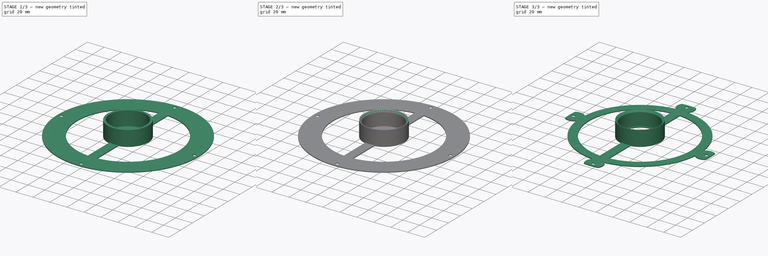
[diagram: build sequence overview — one tinted view per stage of 3, left to right]
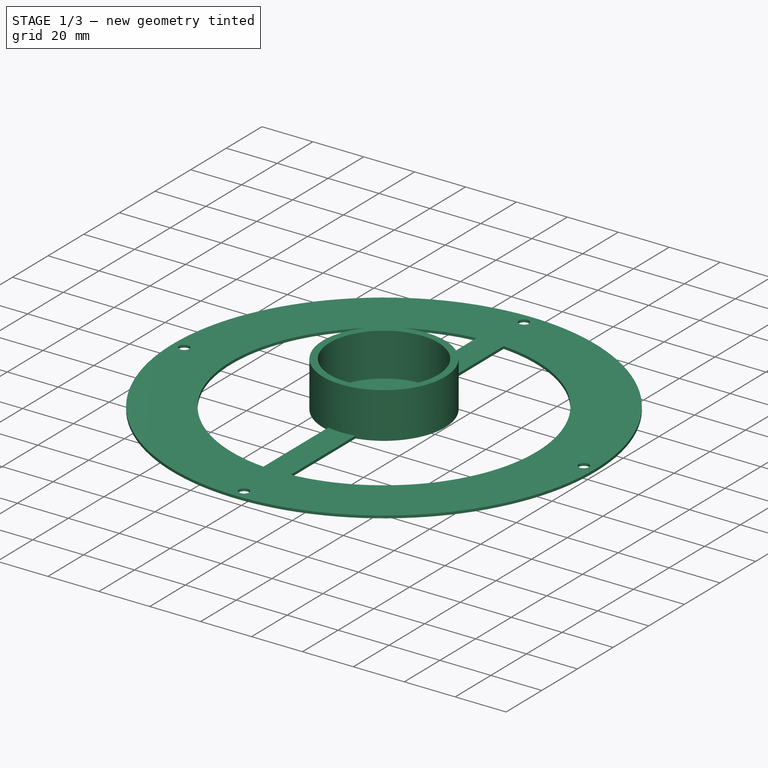
[diagram: stage 1 of 3 — iso view after this stage's code; geometry added in this stage tinted green]
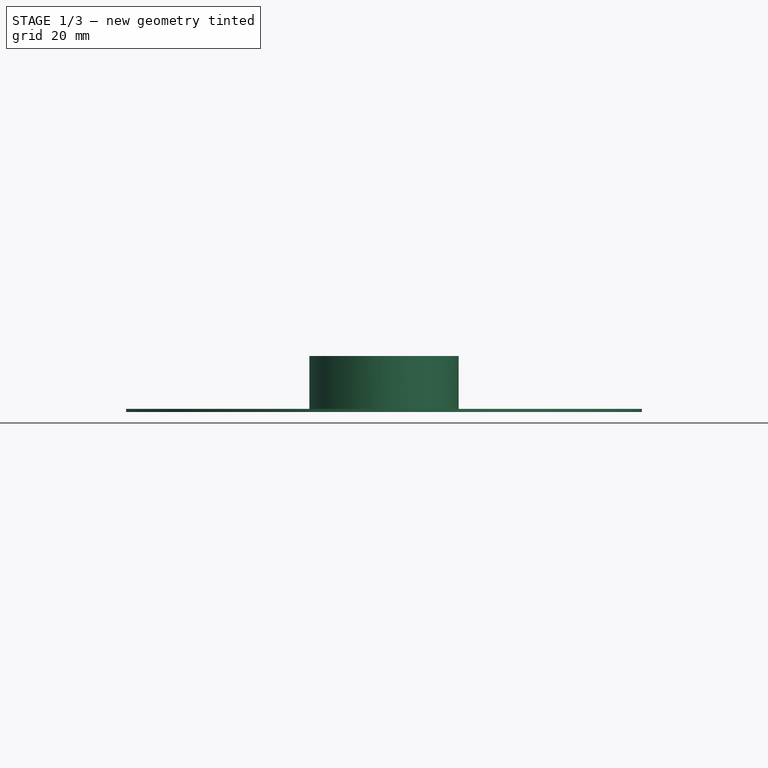
[diagram: stage 1 of 3 — front view after this stage's code; geometry added in this stage tinted green]
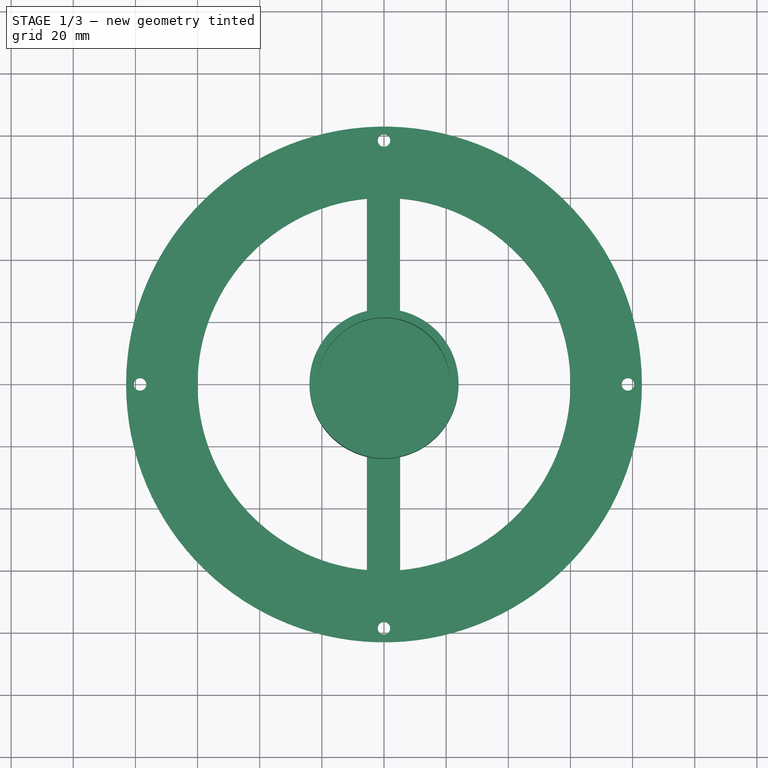
[diagram: stage 1 of 3 — top view after this stage's code; geometry added in this stage tinted green]
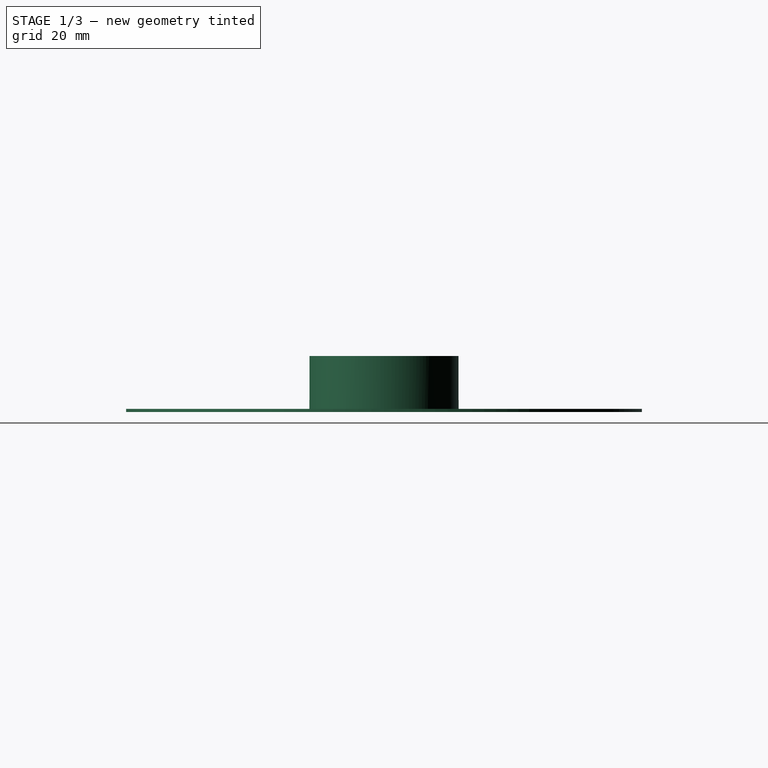
[diagram: stage 1 of 3 — right view after this stage's code; geometry added in this stage tinted green]
FCSTD DOCUMENT  (FreeCAD 0.19R24276 (Git))
Label: Support_for_glass_42_6_v4
License: All rights reserved
LicenseURL: http://en.wikipedia.org/wiki/All_rights_reserved
objects: Sketcher::SketchObject×4, PartDesign::Pad×2, PartDesign::Pocket×2, PartDesign::Chamfer×1, PartDesign::Body×1
note: 15 computed .brp shape members not serialized (recipe doc carries the construction recipe); baked Part::Feature solids carry a one-line shape summary decoded from their .brp

FEATURE [Sketcher::SketchObject] Sketch
  FullyConstrained = false
  MapMode = 5
  Support = -> [XY_Plane]
  sketch-geometry (21):
    g0: Circle CenterX=0 CenterY=0 CenterZ=0 NormalX=0 NormalY=0 NormalZ=1 AngleXU=0 Radius=83
    g1: Circle CenterX=0 CenterY=0 CenterZ=0 NormalX=0 NormalY=0 NormalZ=1 AngleXU=0 Radius=78.5
    g2: LineSegment StartX=0 StartY=0 StartZ=0 EndX=-0.00222336 EndY=78.5 EndZ=0
    g3: LineSegment StartX=0 StartY=0 StartZ=0 EndX=78.5 EndY=0 EndZ=0
    g4: LineSegment StartX=0 StartY=0 StartZ=0 EndX=-0.00912922 EndY=-78.5 EndZ=0
    g5: LineSegment StartX=0 StartY=0 StartZ=0 EndX=-78.5 EndY=-0.00783566 EndZ=0
    g6: Circle CenterX=-0.00222336 CenterY=78.5 CenterZ=0 NormalX=0 NormalY=0 NormalZ=1 AngleXU=0 Radius=2
    g7: Circle CenterX=78.5 CenterY=0 CenterZ=0 NormalX=0 NormalY=0 NormalZ=1 AngleXU=0 Radius=2
    g8: Circle CenterX=-0.00912922 CenterY=-78.5 CenterZ=0 NormalX=0 NormalY=0 NormalZ=1 AngleXU=0 Radius=2
    g9: Circle CenterX=-78.5 CenterY=-0.00783566 CenterZ=0 NormalX=0 NormalY=0 NormalZ=1 AngleXU=0 Radius=9e-16
    g10: Circle CenterX=-78.5 CenterY=-0.00783566 CenterZ=0 NormalX=0 NormalY=0 NormalZ=1 AngleXU=0 Radius=1.4e-15
    g11: Circle CenterX=-78.5 CenterY=-0.00783566 CenterZ=0 NormalX=0 NormalY=0 NormalZ=1 AngleXU=0 Radius=2e-16
    g12: Circle CenterX=-78.5 CenterY=-0.00783566 CenterZ=0 NormalX=0 NormalY=0 NormalZ=1 AngleXU=0 Radius=2
    g13: LineSegment StartX=-5.52208 StartY=-59.7453 StartZ=0 EndX=-5.52259 EndY=-23.356 EndZ=0
    g14: LineSegment StartX=5.13272 StartY=59.7801 StartZ=0 EndX=5.1559 EndY=23.4396 EndZ=0
    g15: LineSegment StartX=5.18581 StartY=-23.433 StartZ=0 EndX=5.20899 EndY=-59.7735 EndZ=0
    g16: LineSegment StartX=-5.52324 StartY=23.3558 StartZ=0 EndX=-5.52374 EndY=59.7452 EndZ=0
    g17: ArcOfCircle CenterX=0 CenterY=0 CenterZ=0 NormalX=0 NormalY=0 NormalZ=1 AngleXU=0 Radius=60 StartAngle=1.66299 EndAngle=4.62022
    g18: ArcOfCircle CenterX=0 CenterY=0 CenterZ=0 NormalX=0 NormalY=0 NormalZ=1 AngleXU=0 Radius=60 StartAngle=4.79931 EndAngle=7.76833
    g19: ArcOfCircle CenterX=0 CenterY=0 CenterZ=0 NormalX=0 NormalY=0 NormalZ=1 AngleXU=0 Radius=24 StartAngle=1.80301 EndAngle=4.4802
    g20: ArcOfCircle CenterX=0 CenterY=0 CenterZ=0 NormalX=0 NormalY=0 NormalZ=1 AngleXU=0 Radius=24 StartAngle=4.93018 EndAngle=7.63746
  constraints (38):
    c: Diameter(g0) = 166
    c: Diameter(g1) = 157
    c: Horizontal(g3)
    c: PointOnObject(g2,g1)
    c: PointOnObject(g4,g1)
    c: PointOnObject(g3,g1)
    c: PointOnObject(g5,g1)
    c: Coincident(g6,g2)
    c: Coincident(g7,g3)
    c: Coincident(g8,g4)
    c: Coincident(g9,g5)
    c: Tangent(g9,g1)
    c: Coincident(g10,g9)
    c: Tangent(g10,g1)
    c: Coincident(g11,g9)
    c: Tangent(g11,g1)
    c: Coincident(g12,g9)
    c: Equal(g12,g6)
    c: Equal(g6,g7)
    c: Equal(g7,g8)
    c: Diameter(g6) = 4
    c: Tangent(g14,g15)
    c: Tangent(g13,g16)
    c: Diameter(g17) = 120
    c: Coincident(g18,g14)
    c: PointOnObject(g17,g16)
    c: Equal(g17,g18)
    c: PointOnObject(g17,g13)
    c: Coincident(g17,g18)
    c: PointOnObject(g18,g15)
    c: Coincident(g19,g0)
    c: Diameter(g19) = 48
    c: Coincident(g20,g14)
    c: PointOnObject(g19,g16)
    c: Equal(g19,g20)
    c: PointOnObject(g19,g13)
    c: Coincident(g19,g20)
    c: PointOnObject(g20,g15)
FEATURE [PartDesign::Pad] Pad
  Direction = (1,1,1)
  Length = 1
  Length2 = 100
  Profile = -> Sketch
  Type = 0
FEATURE [Sketcher::SketchObject] Sketch001
  FullyConstrained = true
  MapMode = 5
  Placement = pos=(0,0,1) rot=(0,0,1;0rad)
  Support = -> [Pad]
  sketch-geometry (2):
    g0: Circle CenterX=0 CenterY=0 CenterZ=0 NormalX=0 NormalY=0 NormalZ=1 AngleXU=0 Radius=21.3
    g1: Circle CenterX=0 CenterY=0 CenterZ=0 NormalX=0 NormalY=0 NormalZ=1 AngleXU=0 Radius=24
  constraints (4):
    c: Coincident(g0,g-1)
    c: Coincident(g1,g0)
    c: Diameter(g0) = 42.6
    c: Diameter(g1) = 48
FEATURE [PartDesign::Pad] Pad001
  BaseFeature = -> Pad
  Direction = (1,1,1)
  Length = 17
  Length2 = 100
  Profile = -> Sketch001
  Type = 0
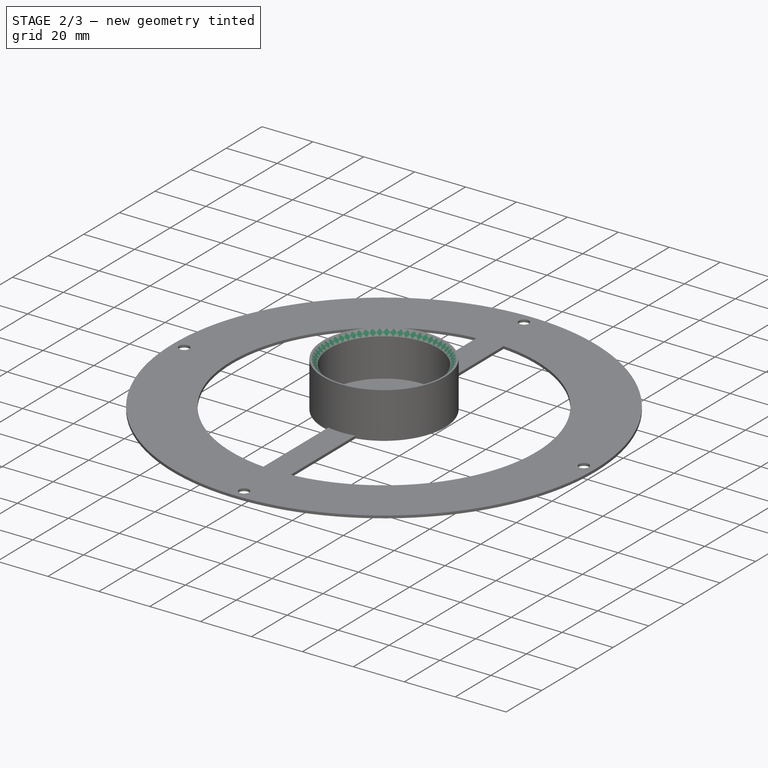
[diagram: stage 2 of 3 — iso view after this stage's code; geometry added in this stage tinted green]
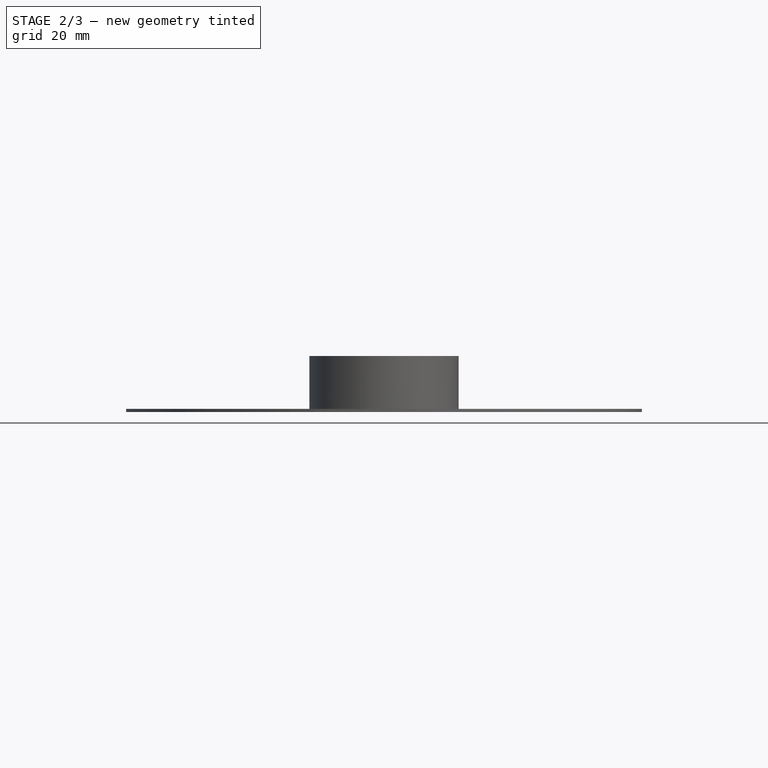
[diagram: stage 2 of 3 — front view after this stage's code; geometry added in this stage tinted green]
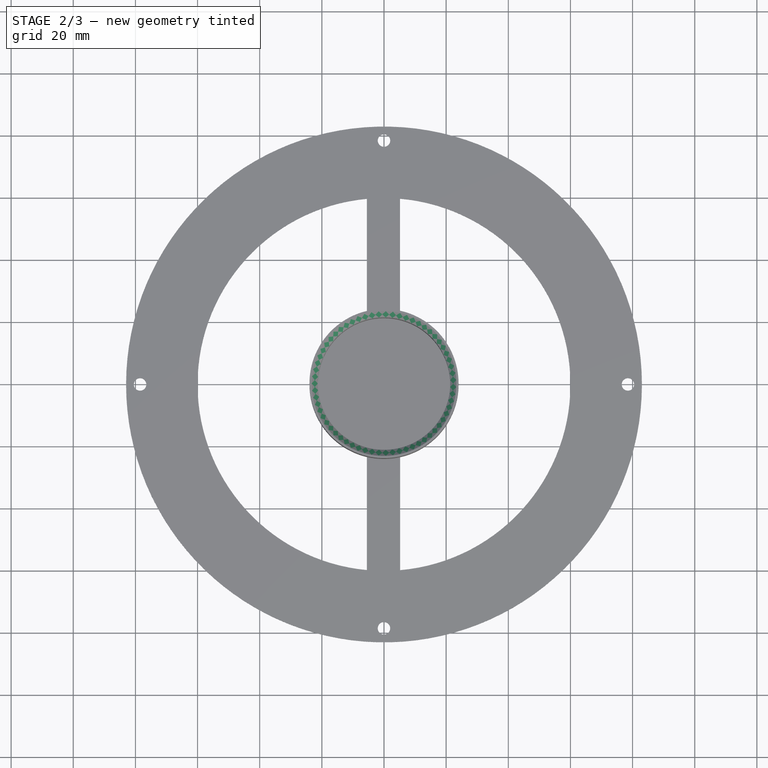
[diagram: stage 2 of 3 — top view after this stage's code; geometry added in this stage tinted green]
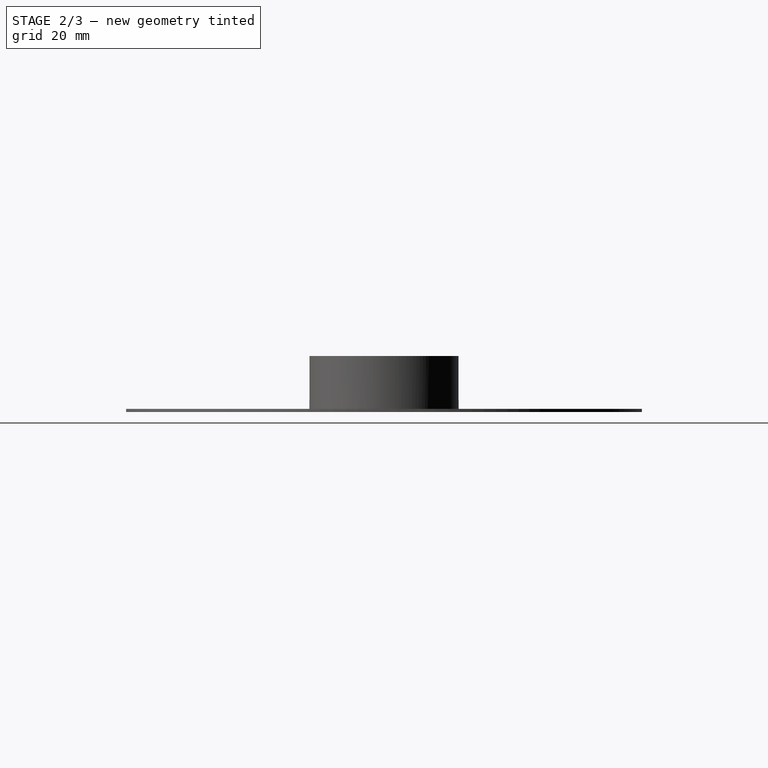
[diagram: stage 2 of 3 — right view after this stage's code; geometry added in this stage tinted green]
FEATURE [PartDesign::Chamfer] Chamfer
  Angle = 45
  Base = -> Pad001 [Edge45]
  BaseFeature = -> Pad001
  ChamferType = 0
  FlipDirection = false
  Size = 2
  Size2 = 1
  SupportTransform = false
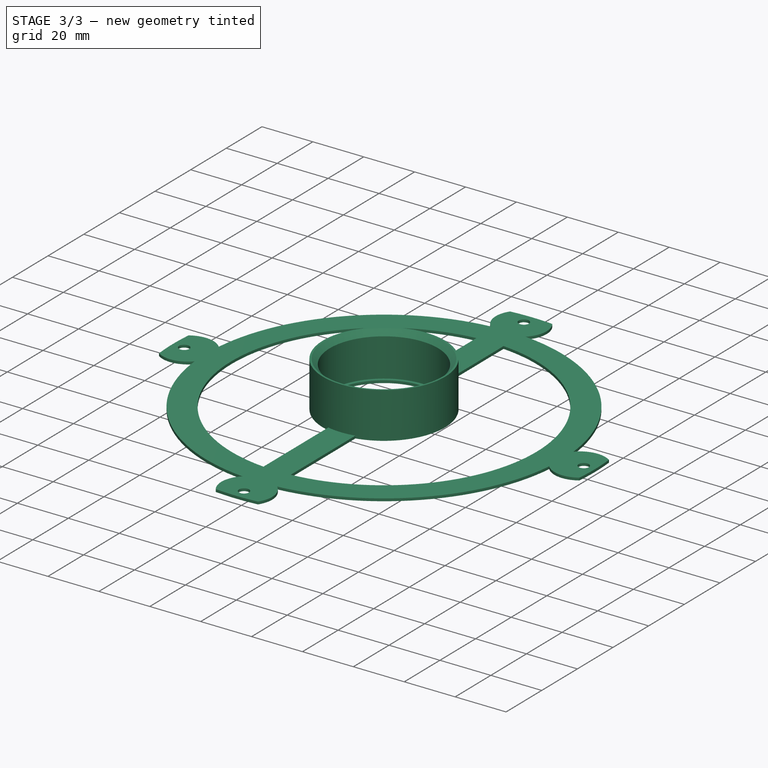
[diagram: stage 3 of 3 — iso view after this stage's code; geometry added in this stage tinted green]
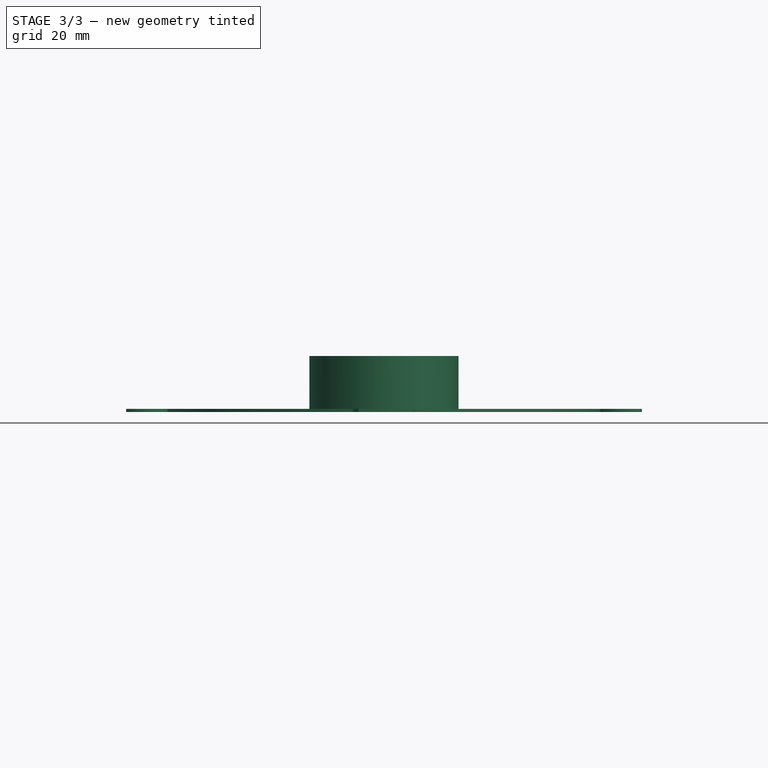
[diagram: stage 3 of 3 — front view after this stage's code; geometry added in this stage tinted green]
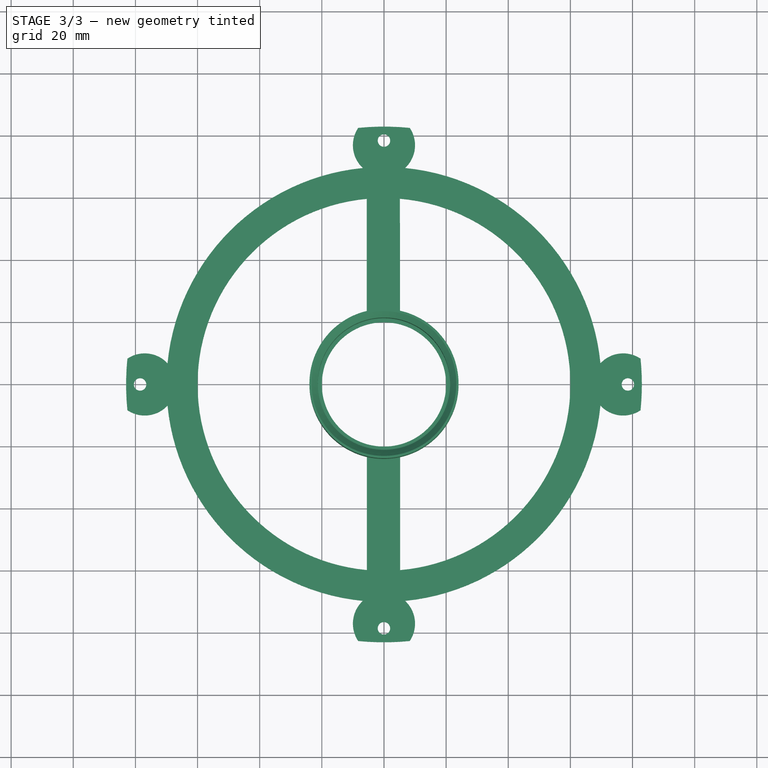
[diagram: stage 3 of 3 — top view after this stage's code; geometry added in this stage tinted green]
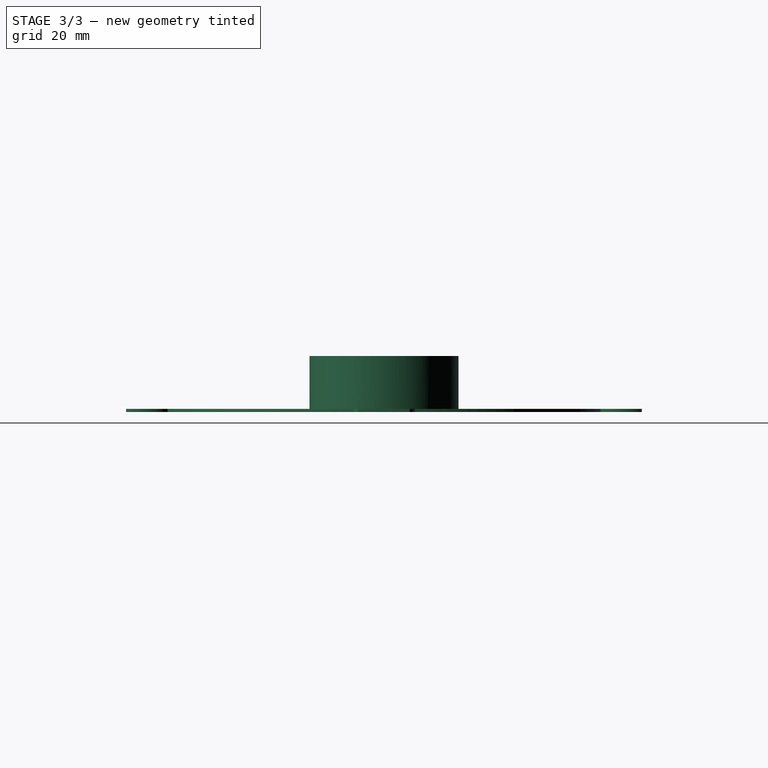
[diagram: stage 3 of 3 — right view after this stage's code; geometry added in this stage tinted green]
FEATURE [Sketcher::SketchObject] Sketch002
  FullyConstrained = true
  MapMode = 5
  Placement = pos=(0,0,1) rot=(0,0,1;0rad)
  Support = -> [Chamfer]
  sketch-geometry (1):
    g0: Circle CenterX=0 CenterY=0 CenterZ=0 NormalX=0 NormalY=0 NormalZ=1 AngleXU=0 Radius=20
  constraints (2):
    c: Coincident(g0,g-1)
    c: Diameter(g0) = 40
FEATURE [PartDesign::Pocket] Pocket
  BaseFeature = -> Chamfer
  Length = 5
  Length2 = 100
  Profile = -> Sketch002
  Type = 1
FEATURE [Sketcher::SketchObject] Sketch003
  FullyConstrained = false
  MapMode = 5
  Placement = pos=(0,0,1) rot=(0,0,1;0rad)
  Support = -> [Pocket]
  sketch-geometry (17):
    g0: ArcOfCircle CenterX=0 CenterY=0 CenterZ=0 NormalX=0 NormalY=0 NormalZ=1 AngleXU=0 Radius=83 StartAngle=1.67091 EndAngle=3.04148
    g1: ArcOfCircle CenterX=0 CenterY=0 CenterZ=0 NormalX=0 NormalY=0 NormalZ=1 AngleXU=0 Radius=70 StartAngle=1.66811 EndAngle=3.04428
    g2: Circle CenterX=0 CenterY=0 CenterZ=0 NormalX=0 NormalY=0 NormalZ=1 AngleXU=0 Radius=77
    g3: ArcOfCircle CenterX=77 CenterY=0 CenterZ=0 NormalX=0 NormalY=0 NormalZ=1 AngleXU=0 Radius=10 StartAngle=0.97829 EndAngle=2.39369
    g4: ArcOfCircle CenterX=0 CenterY=77 CenterZ=0 NormalX=0 NormalY=0 NormalZ=1 AngleXU=0 Radius=10 StartAngle=5.46029 EndAngle=6.87569
    g5: ArcOfCircle CenterX=-77 CenterY=0 CenterZ=0 NormalX=0 NormalY=0 NormalZ=1 AngleXU=0 Radius=10 StartAngle=0.747903 EndAngle=2.1633
    g6: ArcOfCircle CenterX=0 CenterY=-77 CenterZ=0 NormalX=0 NormalY=0 NormalZ=1 AngleXU=0 Radius=10 StartAngle=5.69068 EndAngle=7.10608
    g7: ArcOfCircle CenterX=0 CenterY=77 CenterZ=0 NormalX=0 NormalY=0 NormalZ=1 AngleXU=0 Radius=10 StartAngle=2.54909 EndAngle=3.96449
    g8: ArcOfCircle CenterX=0 CenterY=0 CenterZ=0 NormalX=0 NormalY=0 NormalZ=1 AngleXU=0 Radius=70 StartAngle=0.097311 EndAngle=1.47349
    g9: ArcOfCircle CenterX=77 CenterY=0 CenterZ=0 NormalX=0 NormalY=0 NormalZ=1 AngleXU=0 Radius=10 StartAngle=3.8895 EndAngle=5.30489
    g10: ArcOfCircle CenterX=0 CenterY=-77 CenterZ=0 NormalX=0 NormalY=0 NormalZ=1 AngleXU=0 Radius=10 StartAngle=2.3187 EndAngle=3.7341
    g11: ArcOfCircle CenterX=0 CenterY=0 CenterZ=0 NormalX=0 NormalY=0 NormalZ=1 AngleXU=0 Radius=70 StartAngle=4.8097 EndAngle=6.18587
    g12: ArcOfCircle CenterX=-77 CenterY=0 CenterZ=0 NormalX=0 NormalY=0 NormalZ=1 AngleXU=0 Radius=10 StartAngle=4.11988 EndAngle=5.53528
    g13: ArcOfCircle CenterX=0 CenterY=0 CenterZ=0 NormalX=0 NormalY=0 NormalZ=1 AngleXU=0 Radius=83 StartAngle=3.2417 EndAngle=4.61228
    g14: ArcOfCircle CenterX=0 CenterY=0 CenterZ=0 NormalX=0 NormalY=0 NormalZ=1 AngleXU=0 Radius=70 StartAngle=3.2389 EndAngle=4.61508
    g15: ArcOfCircle CenterX=0 CenterY=0 CenterZ=0 NormalX=0 NormalY=0 NormalZ=1 AngleXU=0 Radius=83 StartAngle=4.8125 EndAngle=6.18307
    g16: ArcOfCircle CenterX=0 CenterY=0 CenterZ=0 NormalX=0 NormalY=0 NormalZ=1 AngleXU=0 Radius=83 StartAngle=0.100112 EndAngle=1.47068
  constraints (57):
    c: Coincident(g0,g-1)
    c: Coincident(g1,g0)
    c: Diameter(g0) = 166
    c: Diameter(g1) = 140
    c: Coincident(g2,g0)
    c: Diameter(g2) = 154
    c: PointOnObject(g3,g2)
    c: Diameter(g3) = 20
    c: PointOnObject(g4,g2)
    c: Equal(g4,g3)
    c: PointOnObject(g5,g2)
    c: PointOnObject(g6,g2)
    c: Equal(g6,g5)
    c: Equal(g5,g4)
    c: Equal(g4,g7)
    c: Coincident(g4,g7)
    c: Coincident(g0,g7)
    c: Coincident(g16,g4)
    c: Coincident(g8,g4)
    c: Coincident(g1,g7)
    c: PointOnObject(g3,g0)
    c: PointOnObject(g9,g0)
    c: Equal(g1,g8)
    c: PointOnObject(g11,g3)
    c: Coincident(g1,g8)
    c: Equal(g3,g9)
    c: Coincident(g3,g8)
    c: Coincident(g3,g9)
    c: PointOnObject(g9,g1)
    c: PointOnObject(g6,g0)
    c: PointOnObject(g10,g0)
    c: Equal(g6,g10)
    c: PointOnObject(g6,g1)
    c: Coincident(g6,g10)
    c: Equal(g1,g11)
    c: Coincident(g14,g10)
    c: Coincident(g1,g11)
    c: PointOnObject(g11,g6)
    c: PointOnObject(g12,g1)
    c: Equal(g5,g12)
    c: Coincident(g5,g12)
    c: Equal(g0,g13)
    c: Coincident(g0,g5)
    c: Coincident(g13,g12)
    c: Coincident(g0,g13)
    c: Equal(g1,g14)
    c: Coincident(g1,g5)
    c: Coincident(g1,g14)
    c: Equal(g13,g15)
    c: PointOnObject(g13,g10)
    c: PointOnObject(g15,g6)
    c: Coincident(g13,g15)
    c: Equal(g15,g16)
    c: PointOnObject(g15,g9)
    c: PointOnObject(g16,g3)
    c: Coincident(g15,g16)
    c: PointOnObject(g14,g12)
FEATURE [PartDesign::Pocket] Pocket001
  BaseFeature = -> Pocket
  Length = 5
  Length2 = 100
  Profile = -> Sketch003
  Type = 1
FEATURE [PartDesign::Body] Body
  Group = -> [Sketch,Pad,Sketch001,Pad001,Chamfer,Sketch002,Pocket,Sketch003,Pocket001]
  Origin = -> Origin
  Tip = -> Pocket001
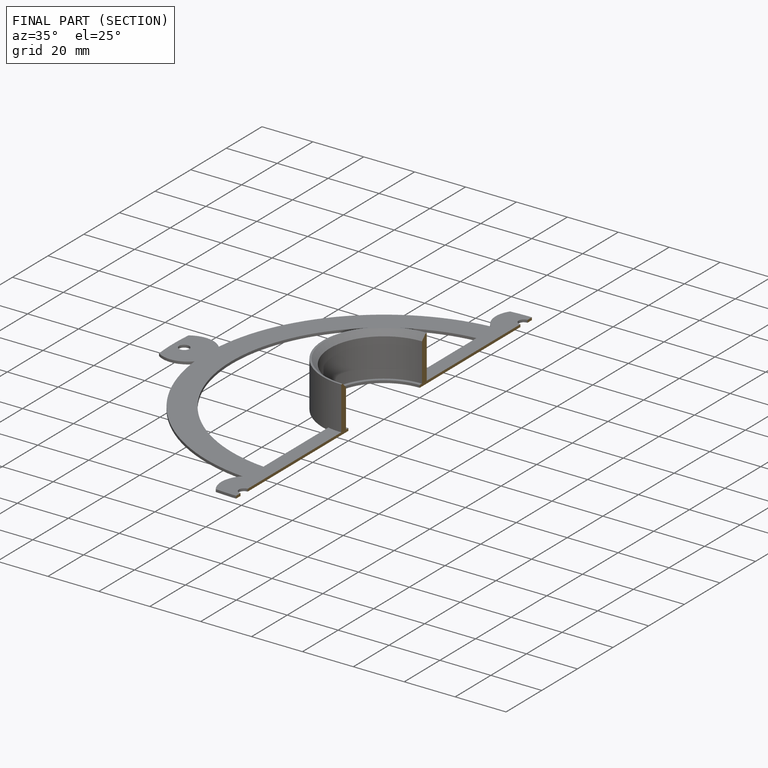
[diagram: finished part — half-section view (interior)]
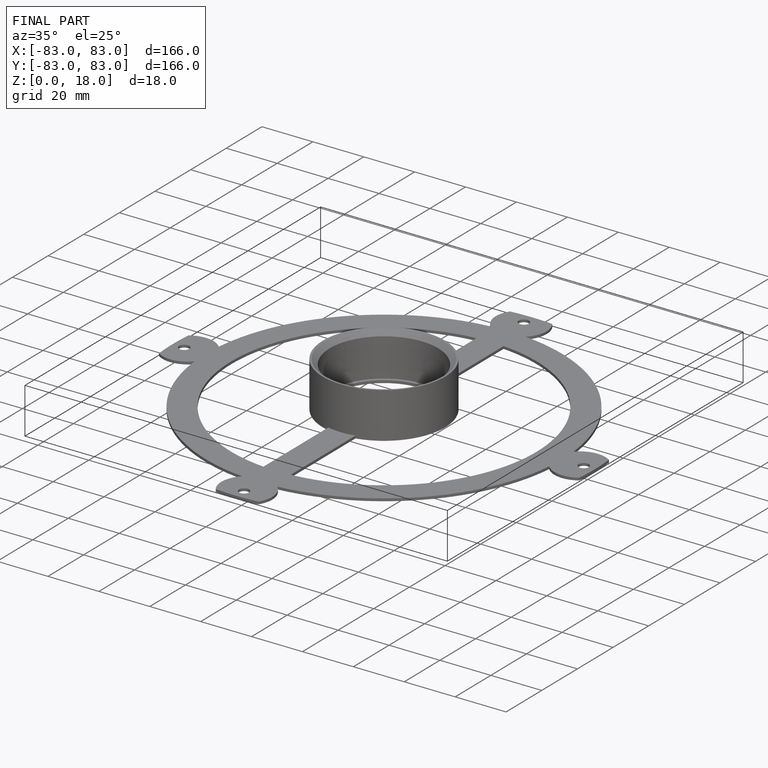
[diagram: finished part — iso view with bounding-box wireframe]
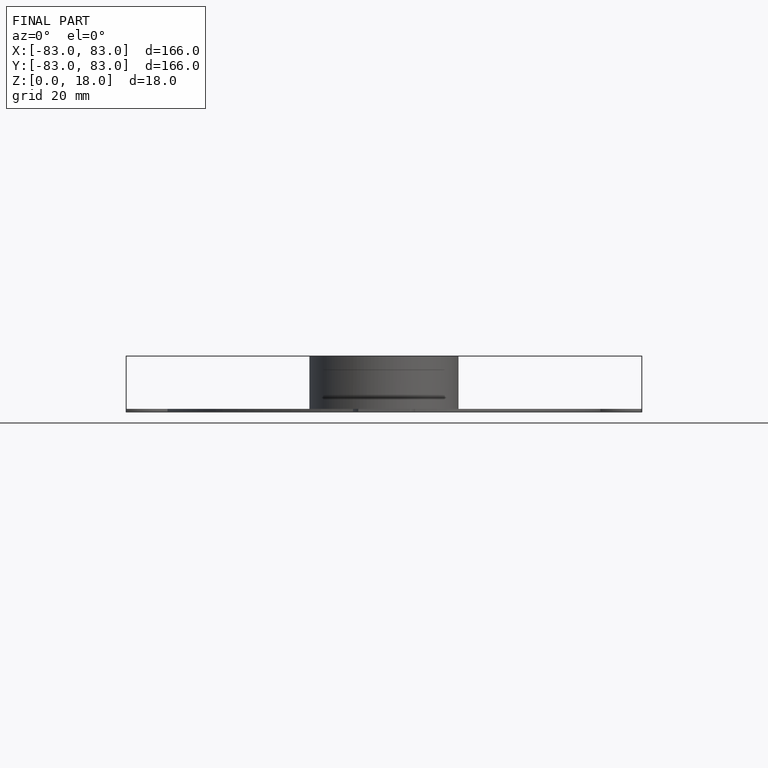
[diagram: finished part — front view with bounding-box wireframe]
